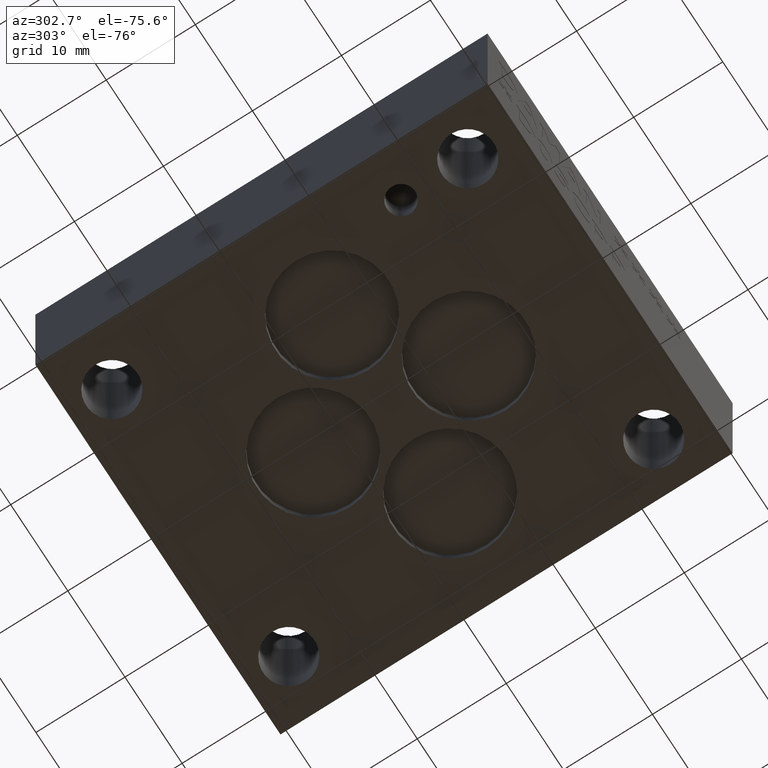
[diagram: clean part render]
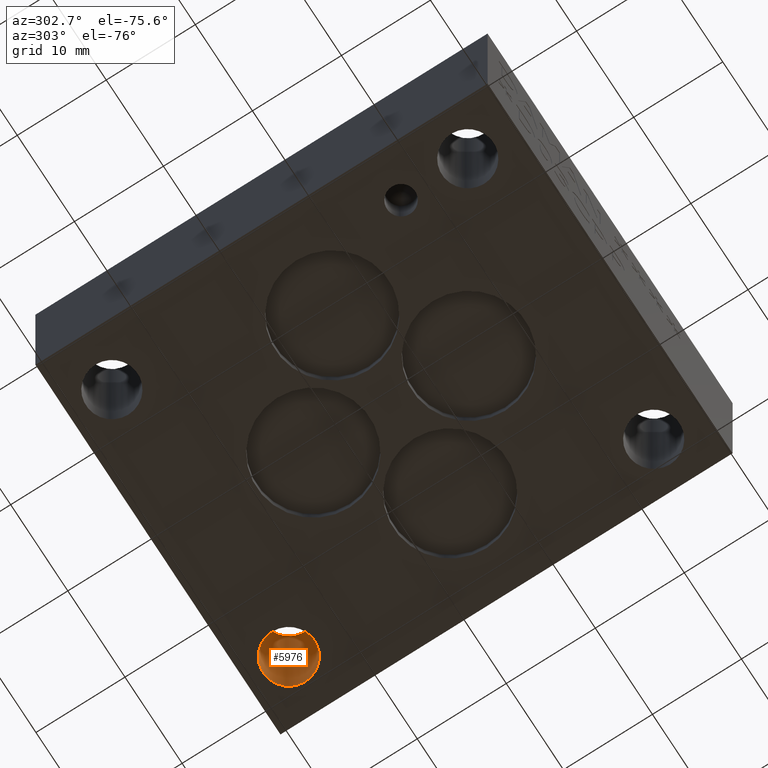
[diagram: same view with one face highlighted and labeled with its STEP entity id]
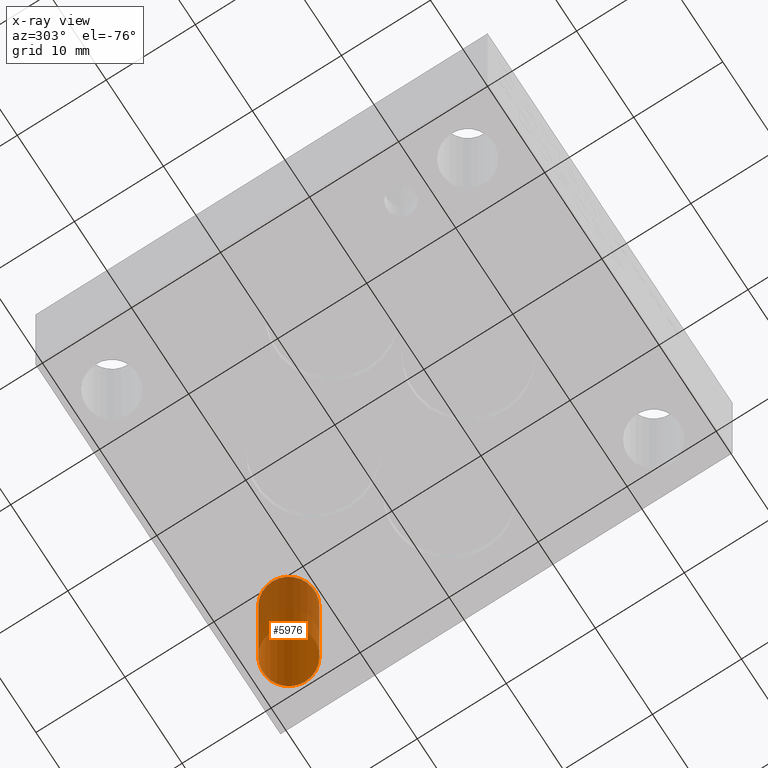
[diagram: x-ray of the same camera — body ghosted, the highlighted face saturated]
A machine part, auxiliary view. The second image highlights one B-rep face of the part: STEP entity #5976.
The next image is the same camera in x-ray: the body ghosted, the highlighted face saturated — about 34% of this face is hidden behind the body in this view.
In plain terms, the highlighted cylindrical surface (bore or boss wall) has radius 2.8956 mm, axis along (0, 0, -1).
Its self-contained STEP definition (entity closure, byte-faithful):
#41=CIRCLE('',#6235,2.8956);
#42=CIRCLE('',#6236,2.8956);
#43=CIRCLE('',#6237,2.8956);
#54=CYLINDRICAL_SURFACE('',#6234,2.8956);
#589=FACE_OUTER_BOUND('',#909,.T.);
#909=EDGE_LOOP('',(#5282,#5283,#5284,#5285,#5286));
#1546=LINE('',#10038,#2172);
#2172=VECTOR('',#7344,2.8956);
#2879=VERTEX_POINT('',#10033);
#2880=VERTEX_POINT('',#10034);
#2881=VERTEX_POINT('',#10037);
#3689=EDGE_CURVE('',#2879,#2880,#41,.T.);
#3690=EDGE_CURVE('',#2880,#2879,#42,.T.);
#3691=EDGE_CURVE('',#2880,#2881,#1546,.T.);
#3692=EDGE_CURVE('',#2881,#2881,#43,.T.);
#5282=ORIENTED_EDGE('',*,*,#3689,.F.);
#5283=ORIENTED_EDGE('',*,*,#3690,.F.);
#5284=ORIENTED_EDGE('',*,*,#3691,.T.);
#5285=ORIENTED_EDGE('',*,*,#3692,.F.);
#5286=ORIENTED_EDGE('',*,*,#3691,.F.);
#5976=ADVANCED_FACE('',(#589),#54,.F.);
#6234=AXIS2_PLACEMENT_3D('',#10032,#7338,#7339);
#6235=AXIS2_PLACEMENT_3D('',#10035,#7340,#7341);
#6236=AXIS2_PLACEMENT_3D('',#10036,#7342,#7343);
#6237=AXIS2_PLACEMENT_3D('',#10039,#7345,#7346);
#7338=DIRECTION('center_axis',(0.,0.,-1.));
#7339=DIRECTION('ref_axis',(1.,0.,0.));
#7340=DIRECTION('center_axis',(0.,0.,1.));
#7341=DIRECTION('ref_axis',(1.,0.,0.));
#7342=DIRECTION('center_axis',(0.,0.,1.));
#7343=DIRECTION('ref_axis',(1.,0.,0.));
#7344=DIRECTION('',(0.,0.,1.));
#7345=DIRECTION('center_axis',(0.,0.,-1.));
#7346=DIRECTION('ref_axis',(1.,0.,0.));
#10032=CARTESIAN_POINT('Origin',(36.9062,46.0248,69.1507431271711));
#10033=CARTESIAN_POINT('',(39.8018,46.0248,0.));
#10034=CARTESIAN_POINT('',(34.0106,46.0248,-8.88178419700125E-15));
#10035=CARTESIAN_POINT('Origin',(36.9062,46.0248,0.));
#10036=CARTESIAN_POINT('Origin',(36.9062,46.0248,0.));
#10037=CARTESIAN_POINT('',(34.0106,46.0248,19.05));
#10038=CARTESIAN_POINT('',(34.0106,46.0248,69.1507431271711));
#10039=CARTESIAN_POINT('Origin',(36.9062,46.0248,19.05));